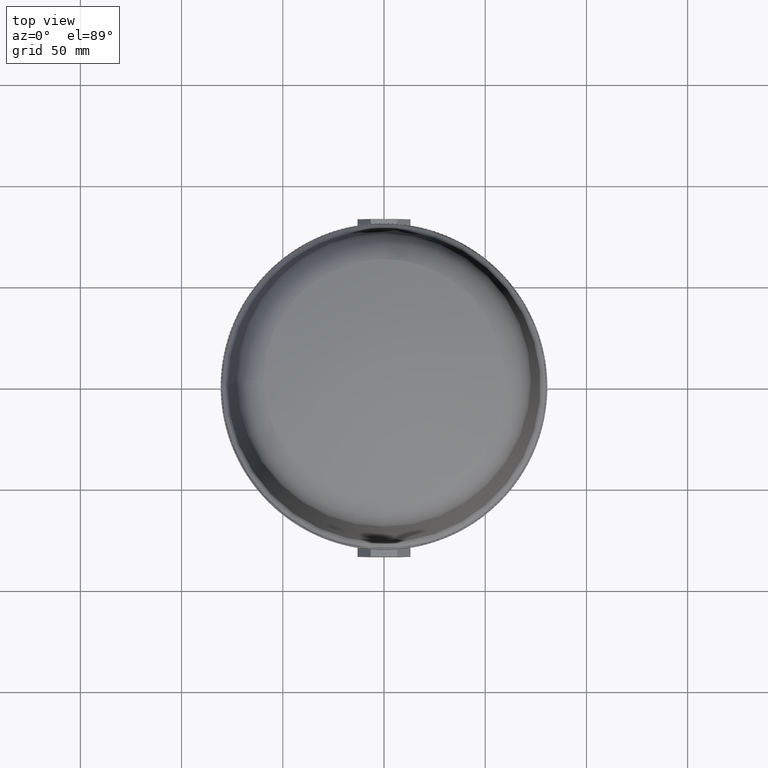
[diagram: clean part render]
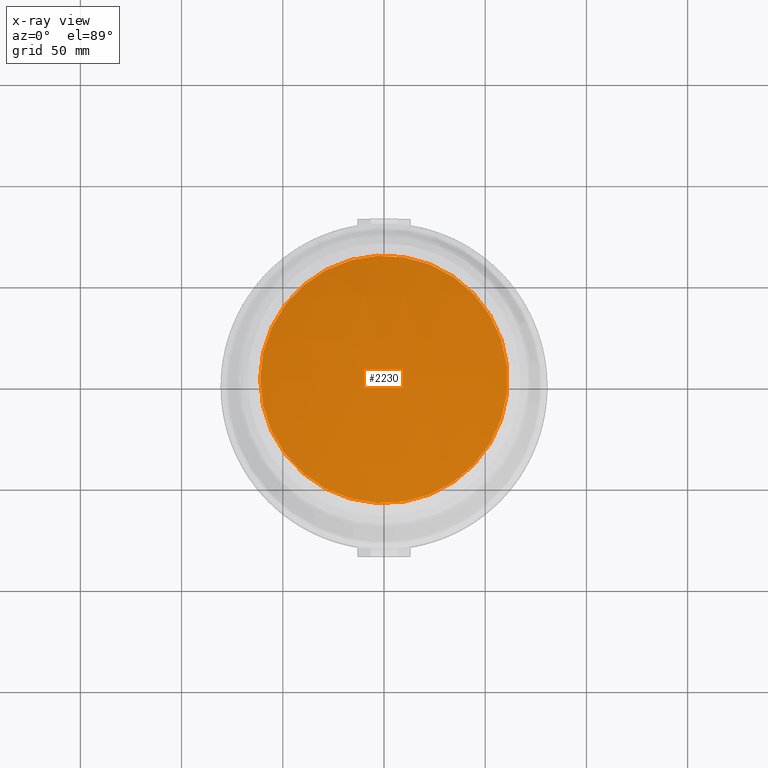
[diagram: x-ray — body ghosted, one internal face saturated and labeled with its STEP entity id]
A machine part, top view, then the same camera in x-ray: the body is ghosted and one INTERNAL B-rep face — a face not visible from any outside direction — is saturated and labeled: STEP entity #2230.
In plain terms, the highlighted spherical surface has radius 207.5 mm.
Its self-contained STEP definition (entity closure, byte-faithful):
#777=SPHERICAL_SURFACE('',#20255,207.5);
#2230=ADVANCED_FACE('',(#4031),#777,.T.);
#4031=FACE_OUTER_BOUND('',#5152,.F.);
#5152=EDGE_LOOP('',(#13476));
#13476=ORIENTED_EDGE('',*,*,#17649,.F.);
#15061=VERTEX_POINT('',#31677);
#17649=EDGE_CURVE('',#15061,#15061,#18420,.T.);
#18420=CIRCLE('',#20253,61.1687354817301);
#20253=AXIS2_PLACEMENT_3D('',#31676,#25260,#25261);
#20255=AXIS2_PLACEMENT_3D('',#31679,#25264,#25265);
#25260=DIRECTION('',(0.,0.,1.));
#25261=DIRECTION('',(-1.,0.,0.));
#25264=DIRECTION('',(1.80506255700221E-017,-1.,4.51446109410831E-016));
#25265=DIRECTION('',(0.294789086658941,3.67712480438288E-016,0.955562344583956));
#31676=CARTESIAN_POINT('',(-1.56400331580193E-014,0.,225.079186501171));
#31677=CARTESIAN_POINT('',(-61.1687354817301,0.,225.079186501171));
#31679=CARTESIAN_POINT('',(-1.24332585668581E-013,-3.46944695195361E-015,
26.7999999999999));